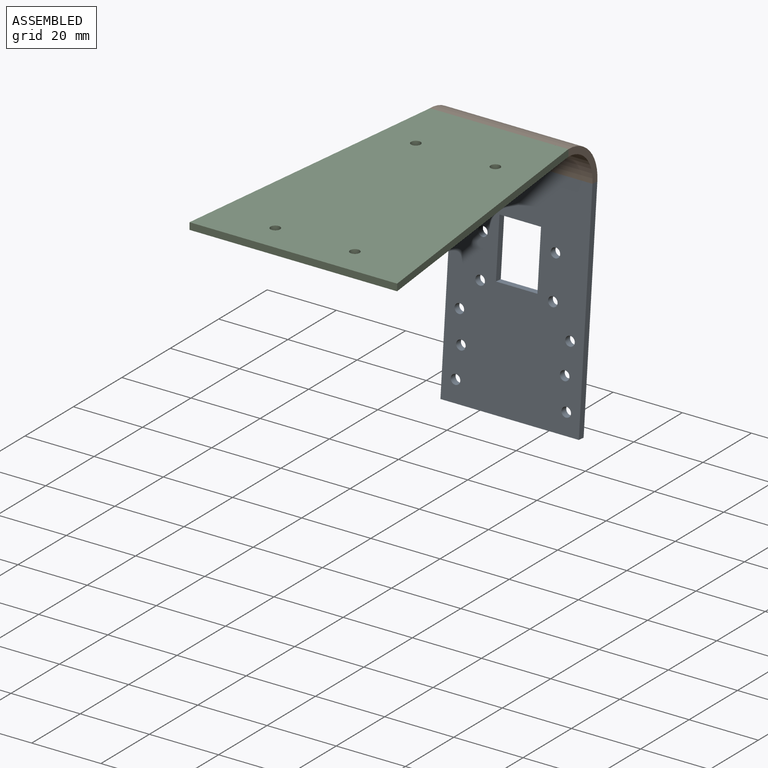
[diagram: assembled view]
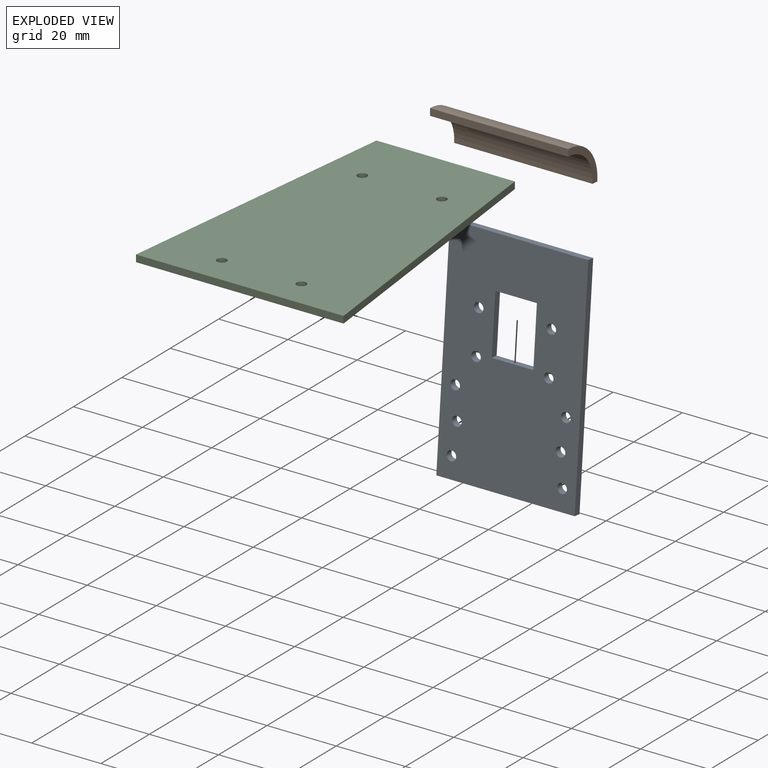
[diagram: exploded view]
GUIDED TOUR — MATED ASSEMBLY (Onshape document 1f461efd7fc835cdacc88859, AutoMate assembly 1f461efd7fc835cdacc88859_03ddbad52d7762825b540ef9_2c4db28a9c7054f298daffdb_default)

This assembly has 3 components, labeled P0..P2 below (a component is one placed occurrence of a part; the same part can appear more than once), held together by 2 mates. A mate is a constraint between two components; its type names the relative motion it leaves free:
  FASTENED — locks the two components together rigidly (no relative motion).
Axis/direction vectors are unit vectors and 'through' points are millimeter coordinates, both in the assembly's world frame.

MATES
  1. FASTENED "Fastened 2": P1 <-> P2, direction (0.000, -1.000, 0.000) through (35.22, 11.26, 117.04) mm
  2. FASTENED "Fastened 1": P1 <-> P0, direction (0.000, -0.087, -0.996) through (35.22, 22.22, 105.08) mm

ASSEMBLY ORDER
  1. P1 — the base component [order verified]
  2. P0 [order verified]
  3. P2 [order verified]
Order-tag legend:
  [order verified] — this step's position reverses a verified removal order: the component was checked to insert without passing through the ones already placed.

Of the 3 components, 3 carry the full construction recipe — the FeatureScript program that regenerates the part's solid from scratch; the rest are supplied as boundary geometry only.
Each toured component is shown spotlighted twice — in the assembled view, then in the exploded view, where a leader line traces a displaced component back to its assembled socket (saturated green if recipe-attached, orange if geometry-only; every other component desaturated gray) — followed by its recipe or geometry summary and the mates that hold it.
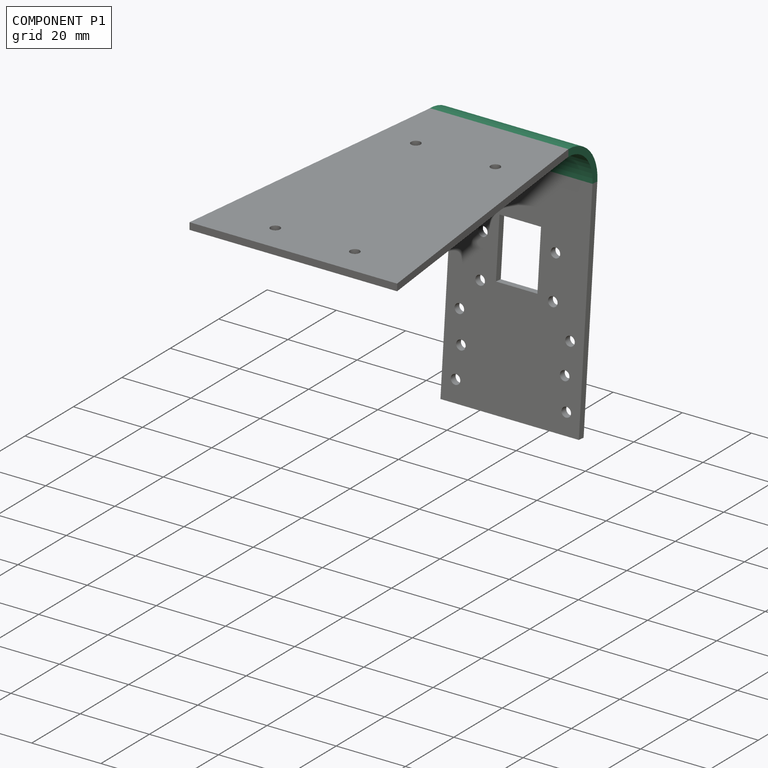
[diagram: component P1 — assembled]
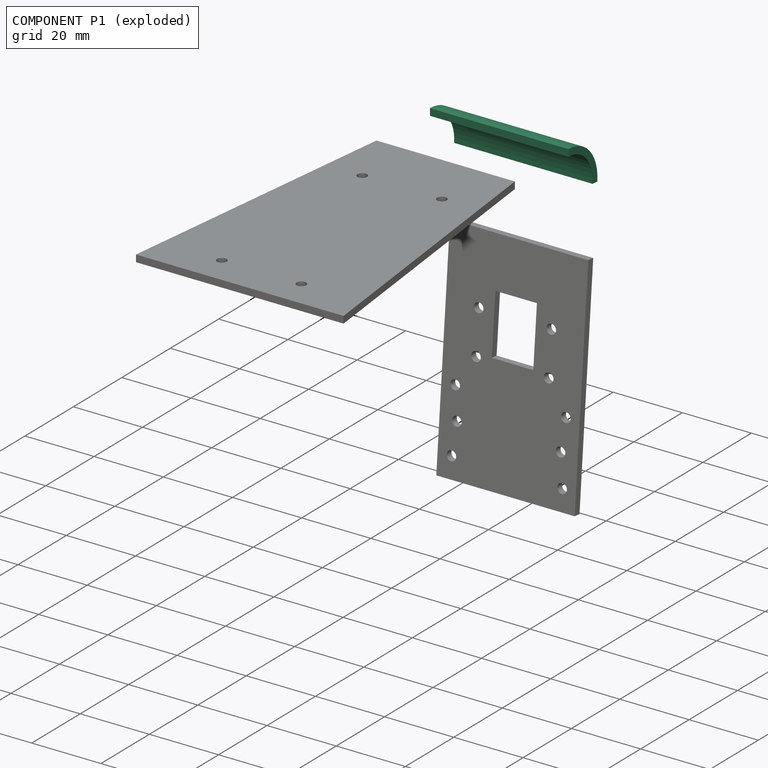
[diagram: component P1 — exploded]
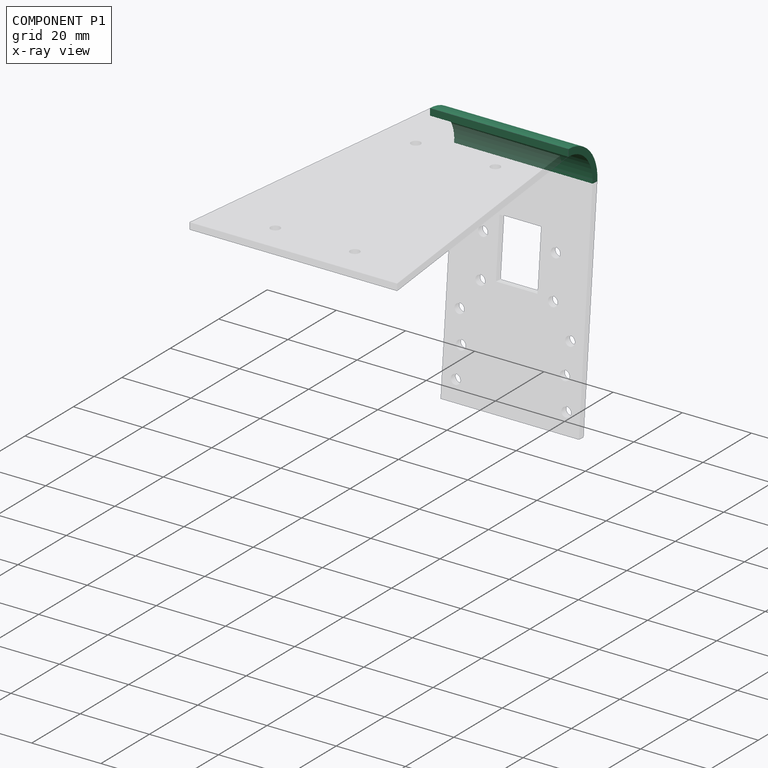
[diagram: component P1 — x-ray view]
COMPONENT P1 — recipe-attached (CADFS 00921098, mesh-verified: the recipe's output STEP matches this component's geometry to below the mesh-comparison resolution (tessellation chordal tolerance ~0.0656 mm)).
Held by: FASTENED mate "Fastened 2" to P2; FASTENED mate "Fastened 1" to P0.
Construction recipe (FeatureScript — the CAD program that rebuilds this solid; sketch coordinates are in the units given by the * unit suffixes, e.g. mm):

FeatureScript 1511;
import(path : "onshape/std/geometry.fs", version : "1511.0");
import(path : "onshape/std/common.fs", version : "1511.0");
const mm = millimeter;
const VERTEX = EntityType.VERTEX;
const EDGE = EntityType.EDGE;
const FACE = EntityType.FACE;
const BODY = EntityType.BODY;
function v(x, y){return vector(x, y);}
function OD(order){return orderDisambiguation(order);}
function OSD(set){return originalSetDisambiguation(set);}
function TD(topology){return topologyDisambiguation(topology);}
function TDD(query){return trueDependencyDisambiguation(query);}
function sQuery(a, b, c) {return sketchEntityQuery(a, b, c);}

annotation { "Feature Type Name" : "Feature", "Feature Type Description" : "" }
export const myFeature = defineFeature(function(context is Context, id is Id, definition is map)
    precondition{}
    {
        {
            var Q0;
            Q0=qCreatedBy(makeId("Top.planeOp"),FACE);
            var sketch = newSketch(context, id + "F0", { "sketchPlane" : qUnion([Q0])});
            skLineSegment(sketch, "E0", {"start": v(0, 0) * mm, "end": v(0, -10) * mm});
            skLineSegment(sketch, "E1", {"start": v(0, 0) * mm, "end": v(9.96, 0.87) * mm});
            skArc(sketch, "E2", {"start": v(0, -10) * mm, "mid": v(7.37, -6.76) * mm, "end": v(9.96, 0.87) * mm});
            skArc(sketch, "E3", {"start": v(0, -12) * mm, "mid": v(8.85, -8.1) * mm, "end": v(11.95, 1.05) * mm});
            skLineSegment(sketch, "E4", {"start": v(0, -10) * mm, "end": v(0, -12) * mm});
            skLineSegment(sketch, "E5", {"start": v(9.96, 0.87) * mm, "end": v(11.95, 1.05) * mm});
            skSolve(sketch);
        }
        {
            var Q0;
            Q0=makeQuery(id+"F0.imprint","IMPRINT",FACE,{"disambiguationData":[TD([[makeQuery(id+"F0.imprint","IMPRINT",EDGE,{"derivedFrom":sQuery(id+"F0.wireOp",EDGE,"E2")}),-1.0]])]});
            extrude(context, id + "F1", {"entities" : qUnion([Q0]), "depth" : 40 * mm, "offsetDistance" : 25 * mm});
        }
    });
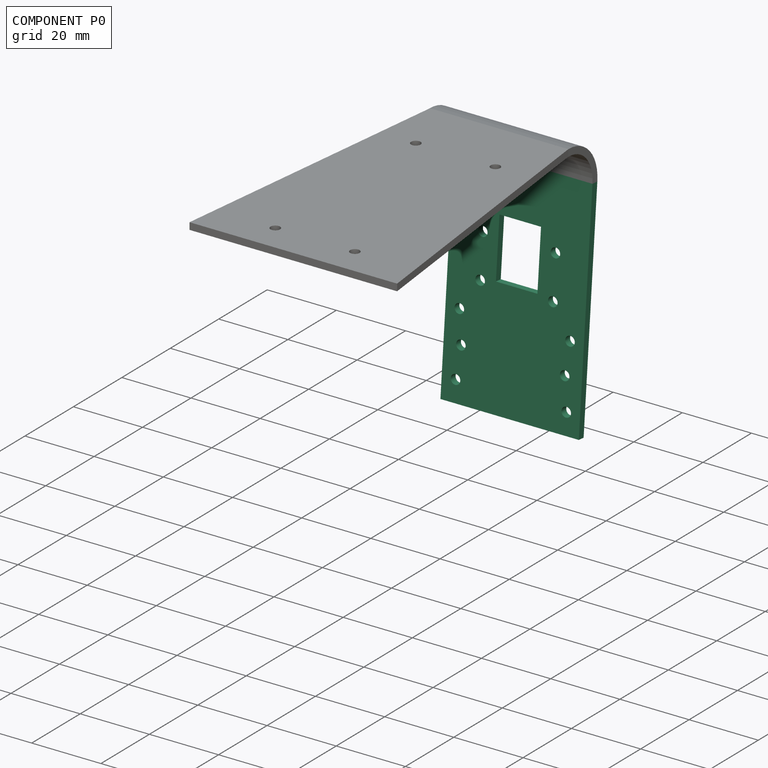
[diagram: component P0 — assembled]
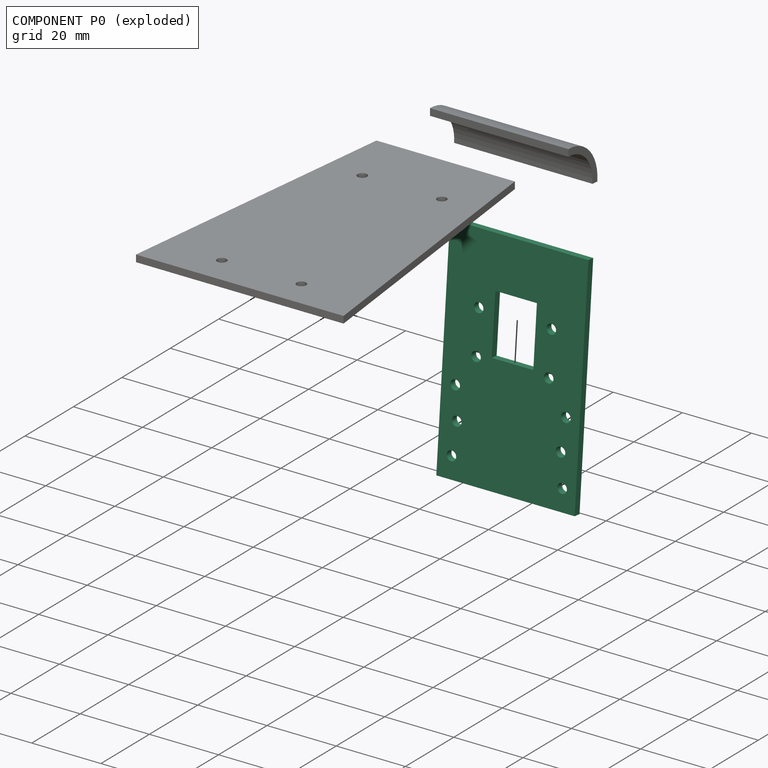
[diagram: component P0 — exploded]
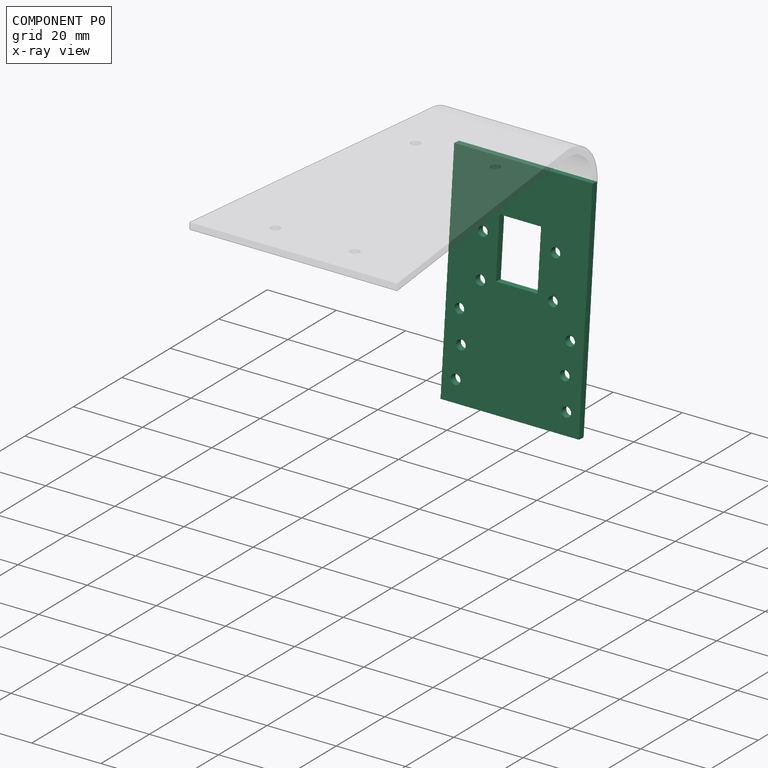
[diagram: component P0 — x-ray view]
COMPONENT P0 — recipe-attached (CADFS 00902057, mesh-verified: the recipe's output STEP matches this component's geometry to below the mesh-comparison resolution (tessellation chordal tolerance ~0.115 mm)).
Held by: FASTENED mate "Fastened 1" to P1.
Construction recipe (FeatureScript — the CAD program that rebuilds this solid; sketch coordinates are in the units given by the * unit suffixes, e.g. mm):

FeatureScript 1511;
import(path : "onshape/std/geometry.fs", version : "1511.0");
import(path : "onshape/std/common.fs", version : "1511.0");
const mm = millimeter;
const VERTEX = EntityType.VERTEX;
const EDGE = EntityType.EDGE;
const FACE = EntityType.FACE;
const BODY = EntityType.BODY;
function v(x, y){return vector(x, y);}
function OD(order){return orderDisambiguation(order);}
function OSD(set){return originalSetDisambiguation(set);}
function TD(topology){return topologyDisambiguation(topology);}
function TDD(query){return trueDependencyDisambiguation(query);}
function sQuery(a, b, c) {return sketchEntityQuery(a, b, c);}

annotation { "Feature Type Name" : "Feature", "Feature Type Description" : "" }
export const myFeature = defineFeature(function(context is Context, id is Id, definition is map)
    precondition{}
    {
        {
            var Q0;
            Q0=qCreatedBy(makeId("Top.planeOp"),FACE);
            var sketch = newSketch(context, id + "F0", { "sketchPlane" : qUnion([Q0])});
            skLineSegment(sketch, "E0.bottom", {"start": v(20, -63.95) * mm, "end": v(0, -63.95) * mm});
            skLineSegment(sketch, "E0.left", {"start": v(20, -63.95) * mm, "end": v(20, 1.05) * mm});
            skLineSegment(sketch, "E0.right", {"start": v(-20, -63.95) * mm, "end": v(-20, 1.05) * mm});
            skCircle(sketch, "E1", {"center": v(10.5, -43.95) * mm, "radius": 1.38 * mm});
            skLineSegment(sketch, "E2", {"start": v(0, -32.42) * mm, "end": v(6, -32.42) * mm});
            skLineSegment(sketch, "E3.MirrorCS", {"start": v(0, -32.42) * mm, "end": v(-6, -32.42) * mm});
            skLineSegment(sketch, "E4", {"start": v(-6, -32.42) * mm, "end": v(-6, -49.42) * mm});
            skLineSegment(sketch, "E5", {"start": v(-6, -49.42) * mm, "end": v(6, -49.42) * mm});
            skLineSegment(sketch, "E6", {"start": v(6, -32.42) * mm, "end": v(6, -49.42) * mm});
            skCircle(sketch, "E7", {"center": v(-10.5, -31.55) * mm, "radius": 1.38 * mm});
            skLineSegment(sketch, "E8", {"start": v(0, -32.42) * mm, "end": v(0, -30.84) * mm});
            skCircle(sketch, "E9.MirrorC", {"center": v(10.5, -31.55) * mm, "radius": 1.38 * mm});
            skCircle(sketch, "E10", {"center": v(-10.5, -43.95) * mm, "radius": 1.38 * mm});
            skLineSegment(sketch, "E11", {"start": v(0, -63.95) * mm, "end": v(-20, -63.95) * mm});
            skPoint(sketch, "E12.endSnap0", {"position": v(10, -63.95) * mm});
            skLineSegment(sketch, "E13", {"start": v(20, 1.05) * mm, "end": v(-20, 1.05) * mm});
            skCircle(sketch, "E14.MirrorC", {"center": v(-16, -4.95) * mm, "radius": 1.38 * mm});
            skCircle(sketch, "E15.MirrorC", {"center": v(16, -4.95) * mm, "radius": 1.38 * mm});
            skCircle(sketch, "E16.MirrorC", {"center": v(-15, -13.95) * mm, "radius": 1.38 * mm});
            skCircle(sketch, "E17.MirrorC", {"center": v(15, -13.95) * mm, "radius": 1.38 * mm});
            skCircle(sketch, "E18.MirrorC", {"center": v(16, -22.95) * mm, "radius": 1.38 * mm});
            skCircle(sketch, "E19.MirrorC", {"center": v(-16, -22.95) * mm, "radius": 1.38 * mm});
            skLineSegment(sketch, "E20", {"start": v(15, -13.95) * mm, "end": v(15, -4.95) * mm});
            skLineSegment(sketch, "E21", {"start": v(16, -4.95) * mm, "end": v(16, 1.05) * mm});
            skLineSegment(sketch, "E22", {"start": v(-16, -22.95) * mm, "end": v(-16, 1.05) * mm});
            skSolve(sketch);
        }
        {
            var Q0;
            {var subQ3=sQuery(id+"F0.wireOp",EDGE,"E0.bottom");Q0=makeQuery(id+"F0.imprint","IMPRINT",FACE,{"disambiguationData":[TD([[makeQuery(id+"F0.imprint","IMPRINT",EDGE,{"derivedFrom":subQ3}),-1.0]])]});}
            extrude(context, id + "F1", {"entities" : qUnion([Q0]), "depth" : 2 * mm, "offsetDistance" : 25 * mm});
        }
    });
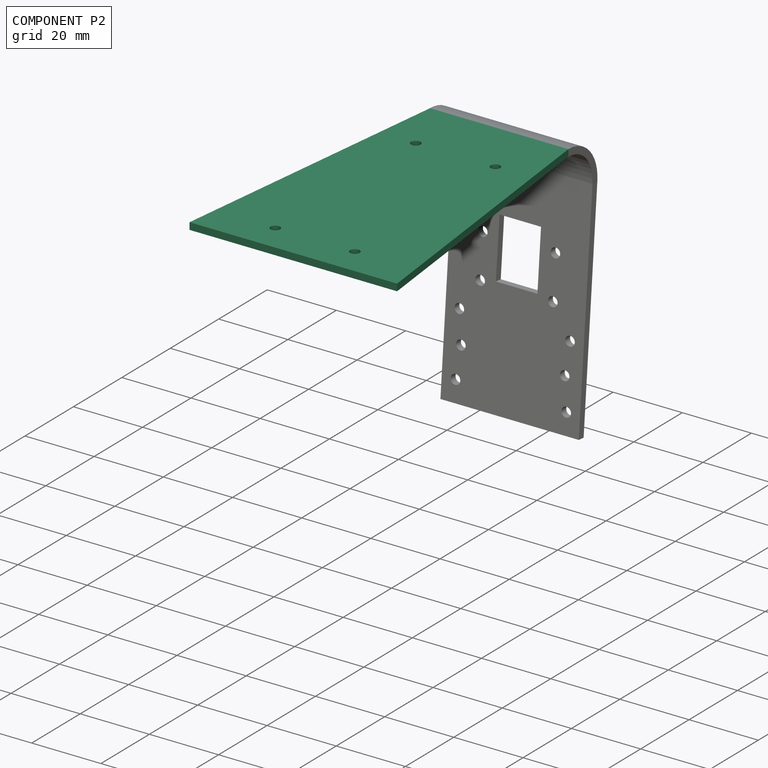
[diagram: component P2 — assembled]
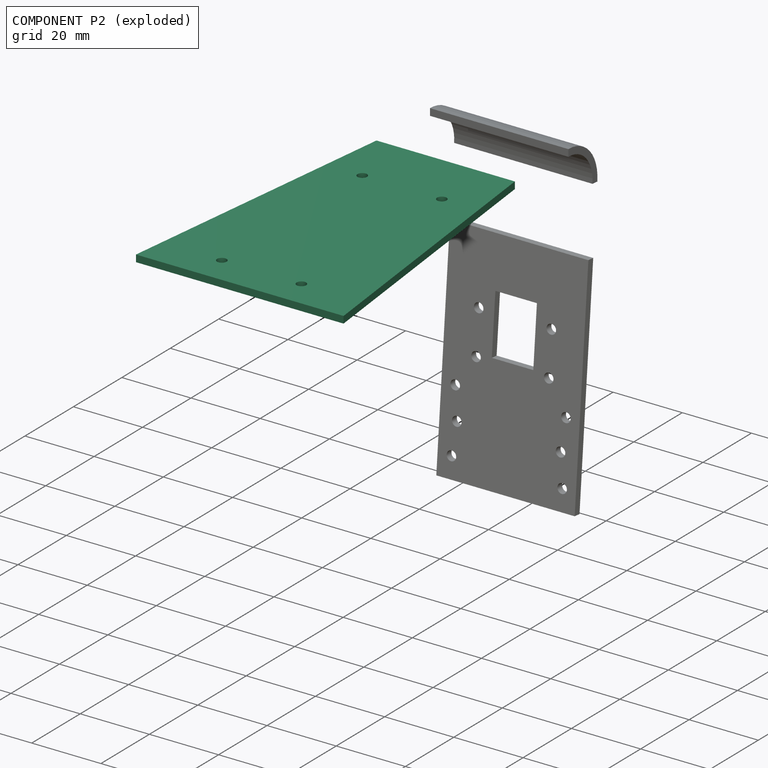
[diagram: component P2 — exploded]
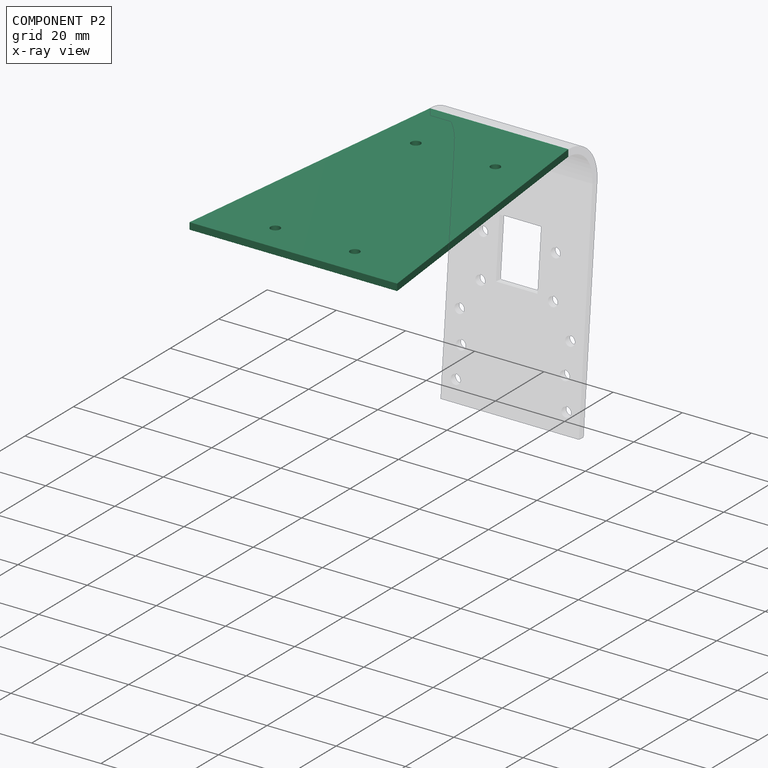
[diagram: component P2 — x-ray view]
COMPONENT P2 — recipe-attached (CADFS 00921090, mesh-verified: the recipe's output STEP matches this component's geometry to below the mesh-comparison resolution (tessellation chordal tolerance ~0.156 mm)).
Held by: FASTENED mate "Fastened 2" to P1.
Construction recipe (FeatureScript — the CAD program that rebuilds this solid; sketch coordinates are in the units given by the * unit suffixes, e.g. mm):

FeatureScript 1511;
import(path : "onshape/std/geometry.fs", version : "1511.0");
import(path : "onshape/std/common.fs", version : "1511.0");
const mm = millimeter;
const VERTEX = EntityType.VERTEX;
const EDGE = EntityType.EDGE;
const FACE = EntityType.FACE;
const BODY = EntityType.BODY;
function v(x, y){return vector(x, y);}
function OD(order){return orderDisambiguation(order);}
function OSD(set){return originalSetDisambiguation(set);}
function TD(topology){return topologyDisambiguation(topology);}
function TDD(query){return trueDependencyDisambiguation(query);}
function sQuery(a, b, c) {return sketchEntityQuery(a, b, c);}

annotation { "Feature Type Name" : "Feature", "Feature Type Description" : "" }
export const myFeature = defineFeature(function(context is Context, id is Id, definition is map)
    precondition{}
    {
        {
            var Q0;
            Q0=qCreatedBy(makeId("Top.planeOp"),FACE);
            var sketch = newSketch(context, id + "F0", { "sketchPlane" : qUnion([Q0])});
            skLineSegment(sketch, "E0", {"start": v(-20, 85) * mm, "end": v(20, 85) * mm});
            skLineSegment(sketch, "E1", {"start": v(0, 85) * mm, "end": v(0, 67) * mm});
            skCircle(sketch, "E2", {"center": v(-11.5, 67) * mm, "radius": 1.38 * mm});
            skCircle(sketch, "E3.MirrorC", {"center": v(11.5, 67) * mm, "radius": 1.38 * mm});
            skCircle(sketch, "E4", {"center": v(-11.5, 9) * mm, "radius": 1.38 * mm});
            skCircle(sketch, "E5.MirrorC", {"center": v(11.5, 9) * mm, "radius": 1.38 * mm});
            skLineSegment(sketch, "E6", {"start": v(0, 0) * mm, "end": v(-30, 0) * mm});
            skLineSegment(sketch, "E7", {"start": v(0, 0) * mm, "end": v(30, 0) * mm});
            skLineSegment(sketch, "E8", {"start": v(-20, 85) * mm, "end": v(-30, 0) * mm});
            skLineSegment(sketch, "E9", {"start": v(20, 85) * mm, "end": v(30, 0) * mm});
            skSolve(sketch);
        }
        {
            var Q0;
            Q0=makeQuery(id+"F0.imprint","IMPRINT",FACE,{"disambiguationData":[TD([[makeQuery(id+"F0.imprint","IMPRINT",EDGE,{"derivedFrom":sQuery(id+"F0.wireOp",EDGE,"E2")}),-1.0]])]});
            extrude(context, id + "F1", {"entities" : qUnion([Q0]), "depth" : 2 * mm, "offsetDistance" : 25 * mm});
        }
    });
PROVENANCE & LICENSES
Assembly (occurrences, transforms, mates, per-part STEP geometry): AutoMate dataset, Zenodo record 7776208, CC0.
Construction recipes: CADFS (HuggingFace VladPyatov/CADFS, CC-BY-4.0, layered over the ABC dataset), FeatureScript reconstruction programs keyed by ABC model id.
Join: ABC meta listings map ABC model id -> Onshape documentId; within a shared document, parts are matched by geometric signature (bounding-box dims + volume at 0.1% relative tolerance, exact B-rep face/solid counts).
Verification: 3 of this assembly's 3 components carry a recipe attachment, and every attachment is mesh-verified: the CADFS STEP and the AutoMate member STEP were compared as meshes in their shared local frame (symmetric sampled-point-to-mesh distance); worst across the 3 attachments: below the mesh-comparison resolution (tessellation chordal tolerance ~0.156 mm) on a 104 mm part.
Renders: orthographic iso camera (az 35 / el 25); the floor grid conveys scale (grid pitch printed in each image; no ruler). In the exploded view each component is displaced by its stored offset vector: the offsets alone carry the explosion direction (mate normal/axis signs are not orientation cues and do not encode it), and separation distances are assigned per mate-chain, not proportionally to assembly-order depth.
